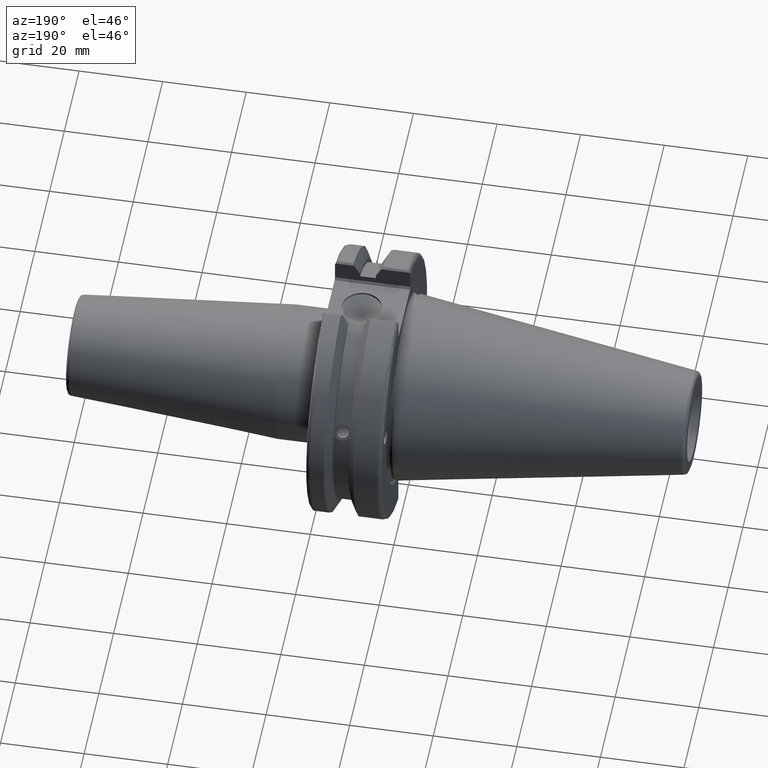
[diagram: clean part render]
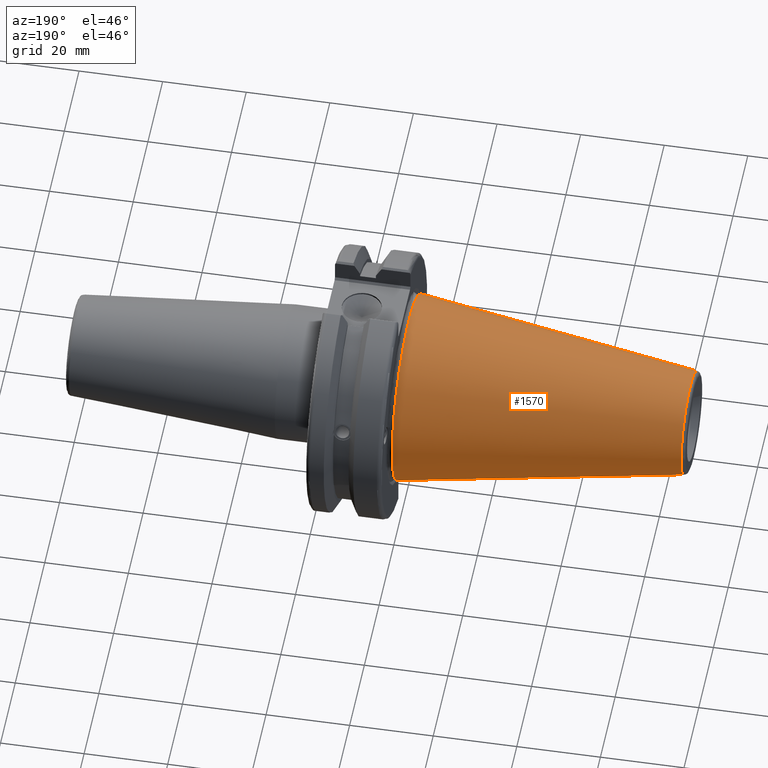
[diagram: same view with one face highlighted and labeled with its STEP entity id]
A machine part, auxiliary view. The second image highlights one B-rep face of the part: STEP entity #1570.
In plain terms, the highlighted conical surface has half-angle 8.297 deg.
Its self-contained STEP definition (entity closure, byte-faithful):
#238=LINE('',#2962,#334);
#334=VECTOR('',#2150,17.2484375);
#363=CONICAL_SURFACE('',#1757,17.2484375,0.144812498238939);
#426=FACE_OUTER_BOUND('',#528,.T.);
#528=EDGE_LOOP('',(#1353,#1354,#1355,#1356,#1357));
#616=CIRCLE('',#1751,12.3966635780937);
#617=CIRCLE('',#1752,12.3966635780937);
#621=CIRCLE('',#1758,22.225);
#774=VERTEX_POINT('',#2949);
#775=VERTEX_POINT('',#2950);
#778=VERTEX_POINT('',#2960);
#983=EDGE_CURVE('',#774,#775,#616,.T.);
#984=EDGE_CURVE('',#775,#774,#617,.T.);
#988=EDGE_CURVE('',#778,#778,#621,.T.);
#989=EDGE_CURVE('',#778,#775,#238,.T.);
#1353=ORIENTED_EDGE('',*,*,#988,.F.);
#1354=ORIENTED_EDGE('',*,*,#989,.T.);
#1355=ORIENTED_EDGE('',*,*,#983,.F.);
#1356=ORIENTED_EDGE('',*,*,#984,.F.);
#1357=ORIENTED_EDGE('',*,*,#989,.F.);
#1570=ADVANCED_FACE('',(#426),#363,.T.);
#1751=AXIS2_PLACEMENT_3D('',#2951,#2134,#2135);
#1752=AXIS2_PLACEMENT_3D('',#2952,#2136,#2137);
#1757=AXIS2_PLACEMENT_3D('',#2959,#2146,#2147);
#1758=AXIS2_PLACEMENT_3D('',#2961,#2148,#2149);
#2134=DIRECTION('center_axis',(-1.,0.,0.));
#2135=DIRECTION('ref_axis',(0.,-1.,3.06161699786838E-17));
#2136=DIRECTION('center_axis',(-1.,0.,0.));
#2137=DIRECTION('ref_axis',(0.,-1.,3.06161699786838E-17));
#2146=DIRECTION('center_axis',(1.,0.,0.));
#2147=DIRECTION('ref_axis',(0.,1.,0.));
#2148=DIRECTION('center_axis',(1.,0.,0.));
#2149=DIRECTION('ref_axis',(0.,0.,-1.));
#2150=DIRECTION('',(-0.989532981063282,0.144306893071729,1.76724974695192E-17));
#2949=CARTESIAN_POINT('',(-67.3943068930717,-1.5181534371019E-15,12.3966635780937));
#2950=CARTESIAN_POINT('',(-67.3943068930718,-12.3966635780937,-1.5181534371019E-15));
#2951=CARTESIAN_POINT('Origin',(-67.3943068930717,0.,-1.89769179637738E-15));
#2952=CARTESIAN_POINT('Origin',(-67.3943068930717,0.,-1.89769179637738E-15));
#2959=CARTESIAN_POINT('Origin',(-34.125,0.,0.));
#2960=CARTESIAN_POINT('',(0.,-22.225,-2.72177751110499E-15));
#2961=CARTESIAN_POINT('Origin',(0.,0.,0.));
#2962=CARTESIAN_POINT('',(-34.125,-17.2484375,-2.11232437746682E-15));